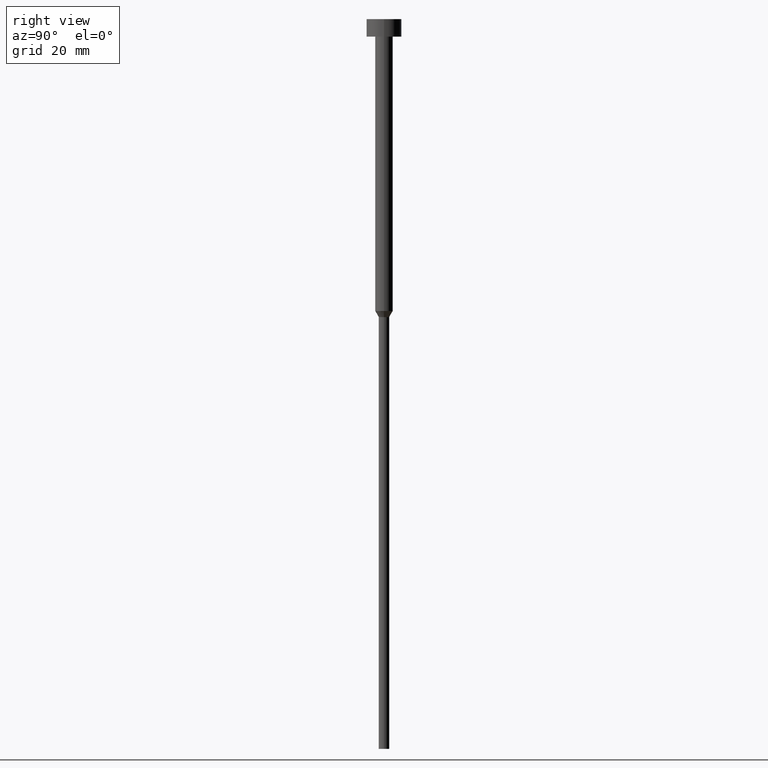
[diagram: clean part render]
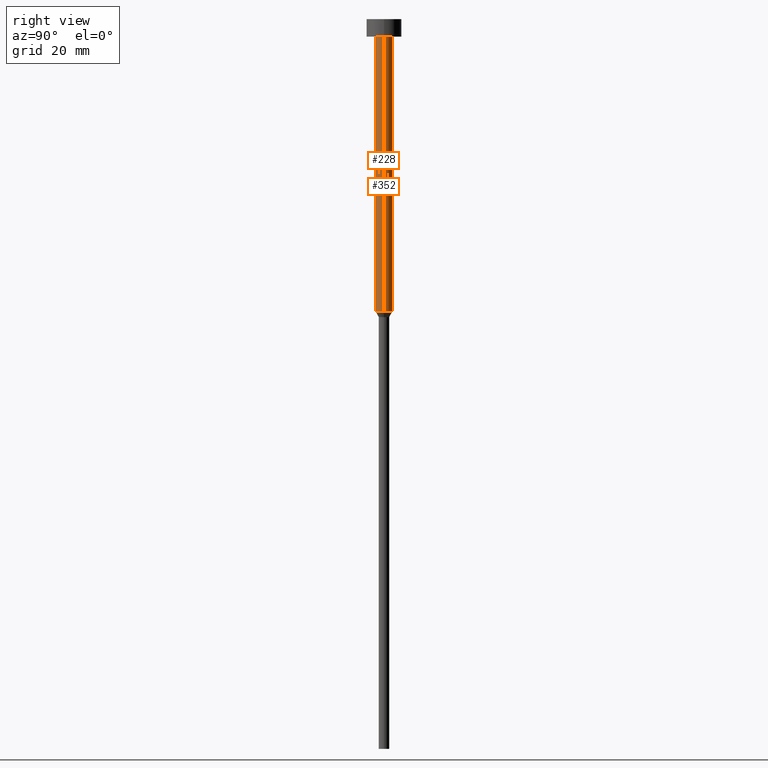
[diagram: same view with one multi-face feature highlighted, each face labeled with its STEP entity id]
A machine part, right view. The highlighted faces form ONE feature: a constant-radius fillet chain: 2 tangent blend faces with common blend radius 1.5 mm. The faces share edges in the B-rep.
Their STEP definitions:
[1] entity #228 (Cylinder):
#13 = VERTEX_POINT ( 'NONE', #219 ) ;
#15 = CARTESIAN_POINT ( 'NONE',  ( 0.000000000000000000, 0.000000000000000000, -3.000000000000000888 ) ) ;
#19 = ORIENTED_EDGE ( 'NONE', *, *, #95, .T. ) ;
#24 = CARTESIAN_POINT ( 'NONE',  ( 0.000000000000000000, 0.000000000000000000, -50.00000000000000000 ) ) ;
#26 = VERTEX_POINT ( 'NONE', #136 ) ;
#41 = VECTOR ( 'NONE', #309, 1000.000000000000000 ) ;
#54 = DIRECTION ( 'NONE',  ( -0.000000000000000000, -0.000000000000000000, 1.000000000000000000 ) ) ;
#75 = LINE ( 'NONE', #174, #316 ) ;
#76 = DIRECTION ( 'NONE',  ( -0.000000000000000000, -0.000000000000000000, 1.000000000000000000 ) ) ;
#77 = DIRECTION ( 'NONE',  ( -0.000000000000000000, -0.000000000000000000, 1.000000000000000000 ) ) ;
#89 = CARTESIAN_POINT ( 'NONE',  ( 1.500000000000000000, 0.000000000000000000, -50.00000000000000000 ) ) ;
#94 = DIRECTION ( 'NONE',  ( -0.000000000000000000, -0.000000000000000000, 1.000000000000000000 ) ) ;
#95 = EDGE_CURVE ( 'NONE', #26, #291, #106, .T. ) ;
#101 = CARTESIAN_POINT ( 'NONE',  ( 0.000000000000000000, 0.000000000000000000, 0.000000000000000000 ) ) ;
#106 = CIRCLE ( 'NONE', #122, 1.500000000000000000 ) ;
#107 = CYLINDRICAL_SURFACE ( 'NONE', #202, 1.500000000000000000 ) ;
#117 = VERTEX_POINT ( 'NONE', #275 ) ;
#118 = AXIS2_PLACEMENT_3D ( 'NONE', #15, #76, #319 ) ;
#122 = AXIS2_PLACEMENT_3D ( 'NONE', #24, #54, #162 ) ;
#136 = CARTESIAN_POINT ( 'NONE',  ( -1.500000000000000000, 1.836970198721029934E-16, -50.00000000000000000 ) ) ;
#161 = DIRECTION ( 'NONE',  ( 1.000000000000000000, 0.000000000000000000, 0.000000000000000000 ) ) ;
#162 = DIRECTION ( 'NONE',  ( 1.000000000000000000, 0.000000000000000000, 0.000000000000000000 ) ) ;
#174 = CARTESIAN_POINT ( 'NONE',  ( 1.500000000000000000, 0.000000000000000000, 0.000000000000000000 ) ) ;
#181 = LINE ( 'NONE', #321, #41 ) ;
#186 = EDGE_CURVE ( 'NONE', #291, #13, #75, .T. ) ;
#193 = ORIENTED_EDGE ( 'NONE', *, *, #346, .F. ) ;
#199 = CIRCLE ( 'NONE', #118, 1.500000000000000000 ) ;
#202 = AXIS2_PLACEMENT_3D ( 'NONE', #101, #94, #161 ) ;
#214 = FACE_OUTER_BOUND ( 'NONE', #312, .T. ) ;
#219 = CARTESIAN_POINT ( 'NONE',  ( 1.500000000000000000, 0.000000000000000000, -3.000000000000000888 ) ) ;
#228 = ADVANCED_FACE ( 'NONE', ( #214 ), #107, .T. ) ;
#275 = CARTESIAN_POINT ( 'NONE',  ( -1.500000000000000000, 1.836970198721029934E-16, -3.000000000000000888 ) ) ;
#282 = ORIENTED_EDGE ( 'NONE', *, *, #288, .F. ) ;
#287 = ORIENTED_EDGE ( 'NONE', *, *, #186, .T. ) ;
#288 = EDGE_CURVE ( 'NONE', #117, #13, #199, .T. ) ;
#291 = VERTEX_POINT ( 'NONE', #89 ) ;
#309 = DIRECTION ( 'NONE',  ( -0.000000000000000000, -0.000000000000000000, 1.000000000000000000 ) ) ;
#312 = EDGE_LOOP ( 'NONE', ( #193, #19, #287, #282 ) ) ;
#316 = VECTOR ( 'NONE', #77, 1000.000000000000000 ) ;
#319 = DIRECTION ( 'NONE',  ( 1.000000000000000000, 0.000000000000000000, 0.000000000000000000 ) ) ;
#321 = CARTESIAN_POINT ( 'NONE',  ( -1.500000000000000000, 1.836970198721029934E-16, 0.000000000000000000 ) ) ;
#346 = EDGE_CURVE ( 'NONE', #26, #117, #181, .T. ) ;
[2] entity #352 (Cylinder):
#13 = VERTEX_POINT ( 'NONE', #219 ) ;
#25 = FACE_OUTER_BOUND ( 'NONE', #207, .T. ) ;
#26 = VERTEX_POINT ( 'NONE', #136 ) ;
#41 = VECTOR ( 'NONE', #309, 1000.000000000000000 ) ;
#47 = AXIS2_PLACEMENT_3D ( 'NONE', #159, #271, #59 ) ;
#58 = DIRECTION ( 'NONE',  ( 1.000000000000000000, 0.000000000000000000, 0.000000000000000000 ) ) ;
#59 = DIRECTION ( 'NONE',  ( 1.000000000000000000, 0.000000000000000000, 0.000000000000000000 ) ) ;
#61 = DIRECTION ( 'NONE',  ( 1.000000000000000000, 0.000000000000000000, 0.000000000000000000 ) ) ;
#67 = EDGE_CURVE ( 'NONE', #291, #26, #182, .T. ) ;
#68 = CIRCLE ( 'NONE', #198, 1.500000000000000000 ) ;
#72 = EDGE_CURVE ( 'NONE', #13, #117, #68, .T. ) ;
#75 = LINE ( 'NONE', #174, #316 ) ;
#77 = DIRECTION ( 'NONE',  ( -0.000000000000000000, -0.000000000000000000, 1.000000000000000000 ) ) ;
#86 = CARTESIAN_POINT ( 'NONE',  ( 0.000000000000000000, 0.000000000000000000, -3.000000000000000888 ) ) ;
#89 = CARTESIAN_POINT ( 'NONE',  ( 1.500000000000000000, 0.000000000000000000, -50.00000000000000000 ) ) ;
#96 = ORIENTED_EDGE ( 'NONE', *, *, #72, .F. ) ;
#102 = DIRECTION ( 'NONE',  ( -0.000000000000000000, -0.000000000000000000, 1.000000000000000000 ) ) ;
#117 = VERTEX_POINT ( 'NONE', #275 ) ;
#136 = CARTESIAN_POINT ( 'NONE',  ( -1.500000000000000000, 1.836970198721029934E-16, -50.00000000000000000 ) ) ;
#152 = ORIENTED_EDGE ( 'NONE', *, *, #67, .T. ) ;
#155 = CARTESIAN_POINT ( 'NONE',  ( 0.000000000000000000, 0.000000000000000000, -50.00000000000000000 ) ) ;
#157 = CYLINDRICAL_SURFACE ( 'NONE', #47, 1.500000000000000000 ) ;
#159 = CARTESIAN_POINT ( 'NONE',  ( 0.000000000000000000, 0.000000000000000000, 0.000000000000000000 ) ) ;
#174 = CARTESIAN_POINT ( 'NONE',  ( 1.500000000000000000, 0.000000000000000000, 0.000000000000000000 ) ) ;
#181 = LINE ( 'NONE', #321, #41 ) ;
#182 = CIRCLE ( 'NONE', #235, 1.500000000000000000 ) ;
#186 = EDGE_CURVE ( 'NONE', #291, #13, #75, .T. ) ;
#198 = AXIS2_PLACEMENT_3D ( 'NONE', #86, #102, #58 ) ;
#207 = EDGE_LOOP ( 'NONE', ( #152, #263, #96, #243 ) ) ;
#219 = CARTESIAN_POINT ( 'NONE',  ( 1.500000000000000000, 0.000000000000000000, -3.000000000000000888 ) ) ;
#235 = AXIS2_PLACEMENT_3D ( 'NONE', #155, #270, #61 ) ;
#243 = ORIENTED_EDGE ( 'NONE', *, *, #186, .F. ) ;
#263 = ORIENTED_EDGE ( 'NONE', *, *, #346, .T. ) ;
#270 = DIRECTION ( 'NONE',  ( -0.000000000000000000, -0.000000000000000000, 1.000000000000000000 ) ) ;
#271 = DIRECTION ( 'NONE',  ( -0.000000000000000000, -0.000000000000000000, 1.000000000000000000 ) ) ;
#275 = CARTESIAN_POINT ( 'NONE',  ( -1.500000000000000000, 1.836970198721029934E-16, -3.000000000000000888 ) ) ;
#291 = VERTEX_POINT ( 'NONE', #89 ) ;
#309 = DIRECTION ( 'NONE',  ( -0.000000000000000000, -0.000000000000000000, 1.000000000000000000 ) ) ;
#316 = VECTOR ( 'NONE', #77, 1000.000000000000000 ) ;
#321 = CARTESIAN_POINT ( 'NONE',  ( -1.500000000000000000, 1.836970198721029934E-16, 0.000000000000000000 ) ) ;
#346 = EDGE_CURVE ( 'NONE', #26, #117, #181, .T. ) ;
#352 = ADVANCED_FACE ( 'NONE', ( #25 ), #157, .T. ) ;